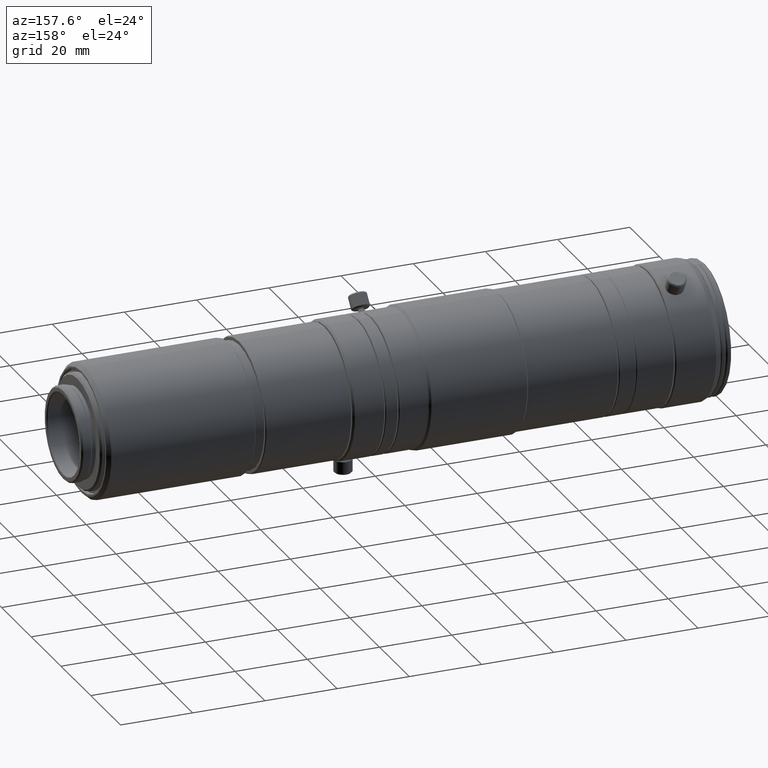
[diagram: clean part render]
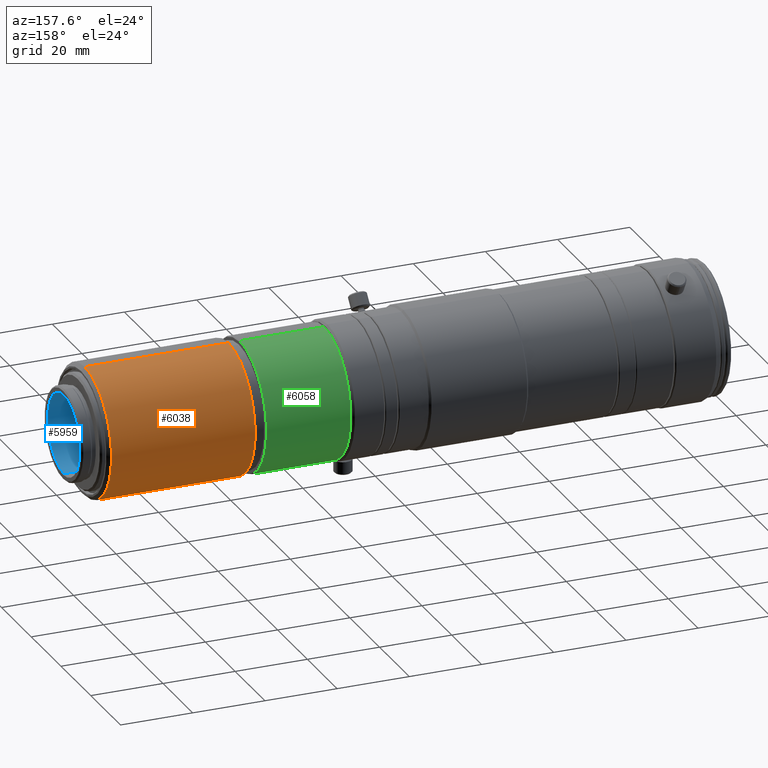
[diagram: same view with three faces highlighted in distinct colors, each labeled with its STEP entity id]
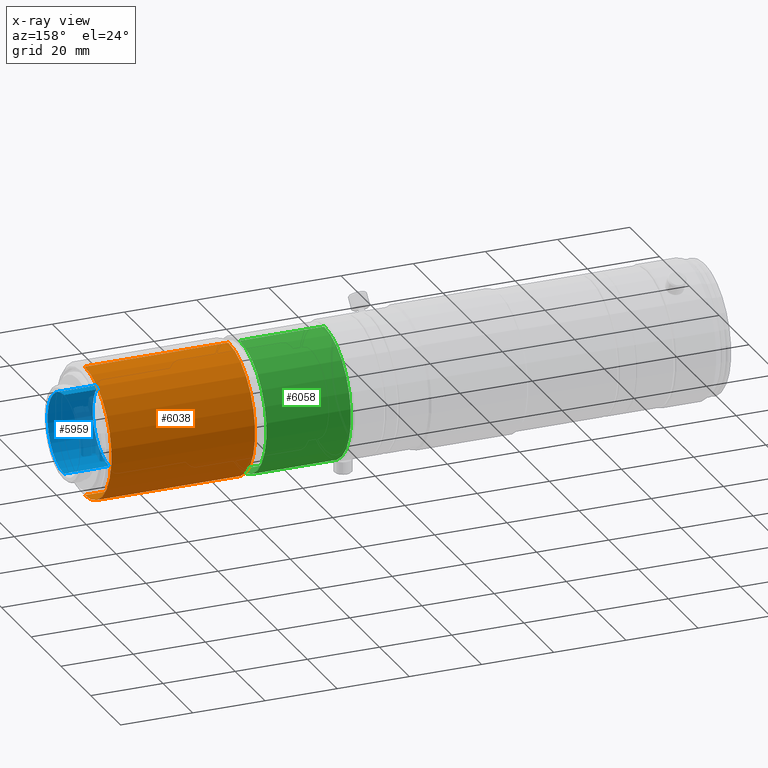
[diagram: x-ray of the same camera — body ghosted, the three highlighted faces saturated]
A machine part, auxiliary view with three faces highlighted in distinct colors.
The next image is the same camera in x-ray (body ghosted, the three faces saturated) — at least one of them is partly hidden behind the body in this view.
Their STEP definitions:

[orange] entity #6038 — the highlighted cylindrical surface (partial cylindrical patch) has radius 18 mm, axis along (1, -0, -0).
#478 = VERTEX_POINT ( 'NONE', #4625 ) ;
#479 = VERTEX_POINT ( 'NONE', #4667 ) ;
#483 = VERTEX_POINT ( 'NONE', #4878 ) ;
#484 = VERTEX_POINT ( 'NONE', #4660 ) ;
#1151 = LINE ( 'NONE', #1785, #1155 ) ;
#1154 = CIRCLE ( 'NONE', #4164, 18.00000000000007100 ) ;
#1155 = VECTOR ( 'NONE', #1790, 1000.000000000000000 ) ;
#1157 = LINE ( 'NONE', #1791, #1159 ) ;
#1158 = CIRCLE ( 'NONE', #4165, 18.00000000000007100 ) ;
#1159 = VECTOR ( 'NONE', #1792, 1000.000000000000000 ) ;
#1785 = CARTESIAN_POINT ( 'NONE',  ( 0.0000000000000000000, 0.0000000000000000000, -18.00000000000007100 ) ) ;
#1790 = DIRECTION ( 'NONE',  ( 1.000000000000000000, -0.0000000000000000000, -0.0000000000000000000 ) ) ;
#1791 = CARTESIAN_POINT ( 'NONE',  ( 0.0000000000000000000, 2.204364238465244500E-015, 18.00000000000007100 ) ) ;
#1792 = DIRECTION ( 'NONE',  ( 1.000000000000000000, -0.0000000000000000000, -0.0000000000000000000 ) ) ;
#1797 = CARTESIAN_POINT ( 'NONE',  ( -19.52600000000001000, 0.0000000000000000000, 0.0000000000000000000 ) ) ;
#1798 = DIRECTION ( 'NONE',  ( 1.000000000000000000, -0.0000000000000000000, -0.0000000000000000000 ) ) ;
#1799 = DIRECTION ( 'NONE',  ( 0.0000000000000000000, 0.0000000000000000000, -1.000000000000000000 ) ) ;
#1804 = CARTESIAN_POINT ( 'NONE',  ( -59.32600000000002200, 0.0000000000000000000, 0.0000000000000000000 ) ) ;
#1805 = DIRECTION ( 'NONE',  ( 1.000000000000000000, -0.0000000000000000000, -0.0000000000000000000 ) ) ;
#1806 = DIRECTION ( 'NONE',  ( 0.0000000000000000000, 0.0000000000000000000, -1.000000000000000000 ) ) ;
#2506 = FACE_OUTER_BOUND ( 'NONE', #5515, .T. ) ;
#2518 = CYLINDRICAL_SURFACE ( 'NONE', #3465, 18.00000000000007100 ) ;
#3214 = DIRECTION ( 'NONE',  ( 0.0000000000000000000, 0.0000000000000000000, -1.000000000000000000 ) ) ;
#3216 = DIRECTION ( 'NONE',  ( 1.000000000000000000, -0.0000000000000000000, -0.0000000000000000000 ) ) ;
#3218 = CARTESIAN_POINT ( 'NONE',  ( 0.0000000000000000000, 0.0000000000000000000, 0.0000000000000000000 ) ) ;
#3465 = AXIS2_PLACEMENT_3D ( 'NONE', #3218, #3216, #3214 ) ;
#4164 = AXIS2_PLACEMENT_3D ( 'NONE', #1797, #1798, #1799 ) ;
#4165 = AXIS2_PLACEMENT_3D ( 'NONE', #1804, #1805, #1806 ) ;
#4553 = ORIENTED_EDGE ( 'NONE', *, *, #5353, .T. ) ;
#4554 = ORIENTED_EDGE ( 'NONE', *, *, #5355, .T. ) ;
#4560 = ORIENTED_EDGE ( 'NONE', *, *, #5352, .F. ) ;
#4625 = CARTESIAN_POINT ( 'NONE',  ( -59.32600000000002200, 0.0000000000000000000, -18.00000000000007100 ) ) ;
#4660 = CARTESIAN_POINT ( 'NONE',  ( -19.52600000000001000, 0.0000000000000000000, 18.00000000000007100 ) ) ;
#4667 = CARTESIAN_POINT ( 'NONE',  ( -59.32600000000002200, 2.204364238465244500E-015, 18.00000000000007100 ) ) ;
#4878 = CARTESIAN_POINT ( 'NONE',  ( -19.52600000000001000, 2.204364238465244500E-015, -18.00000000000007100 ) ) ;
#5350 = EDGE_CURVE ( 'NONE', #478, #483, #1151, .T. ) ;
#5352 = EDGE_CURVE ( 'NONE', #483, #484, #1154, .T. ) ;
#5353 = EDGE_CURVE ( 'NONE', #479, #484, #1157, .T. ) ;
#5355 = EDGE_CURVE ( 'NONE', #478, #479, #1158, .T. ) ;
#5515 = EDGE_LOOP ( 'NONE', ( #4554, #4553, #4560, #5694 ) ) ;
#5694 = ORIENTED_EDGE ( 'NONE', *, *, #5350, .F. ) ;
#6038 = ADVANCED_FACE ( 'NONE', ( #2506 ), #2518, .T. ) ;

[blue] entity #5959 — the highlighted cylindrical surface (partial cylindrical patch) has radius 11 mm, axis along (1, -0, -0).
#491 = VERTEX_POINT ( 'NONE', #4641 ) ;
#497 = VERTEX_POINT ( 'NONE', #4634 ) ;
#507 = VERTEX_POINT ( 'NONE', #4608 ) ;
#544 = VERTEX_POINT ( 'NONE', #4866 ) ;
#663 = LINE ( 'NONE', #4413, #667 ) ;
#664 = LINE ( 'NONE', #4420, #669 ) ;
#666 = CIRCLE ( 'NONE', #5848, 11.00000000000007100 ) ;
#667 = VECTOR ( 'NONE', #4423, 1000.000000000000000 ) ;
#669 = VECTOR ( 'NONE', #4444, 1000.000000000000000 ) ;
#676 = CIRCLE ( 'NONE', #5850, 11.00000000000007100 ) ;
#2352 = FACE_OUTER_BOUND ( 'NONE', #3853, .T. ) ;
#2358 = CYLINDRICAL_SURFACE ( 'NONE', #4314, 11.00000000000007100 ) ;
#2964 = DIRECTION ( 'NONE',  ( 0.0000000000000000000, 0.0000000000000000000, -1.000000000000000000 ) ) ;
#2967 = DIRECTION ( 'NONE',  ( 1.000000000000000000, -0.0000000000000000000, -0.0000000000000000000 ) ) ;
#2968 = CARTESIAN_POINT ( 'NONE',  ( 0.0000000000000000000, 0.0000000000000000000, 0.0000000000000000000 ) ) ;
#3837 = ORIENTED_EDGE ( 'NONE', *, *, #3993, .F. ) ;
#3853 = EDGE_LOOP ( 'NONE', ( #3837, #3895, #3914, #5281 ) ) ;
#3895 = ORIENTED_EDGE ( 'NONE', *, *, #3992, .T. ) ;
#3914 = ORIENTED_EDGE ( 'NONE', *, *, #3998, .T. ) ;
#3991 = EDGE_CURVE ( 'NONE', #544, #497, #663, .T. ) ;
#3992 = EDGE_CURVE ( 'NONE', #491, #507, #664, .T. ) ;
#3993 = EDGE_CURVE ( 'NONE', #491, #544, #666, .T. ) ;
#3998 = EDGE_CURVE ( 'NONE', #507, #497, #676, .T. ) ;
#4314 = AXIS2_PLACEMENT_3D ( 'NONE', #2968, #2967, #2964 ) ;
#4413 = CARTESIAN_POINT ( 'NONE',  ( 0.0000000000000000000, 0.0000000000000000000, -11.00000000000007100 ) ) ;
#4420 = CARTESIAN_POINT ( 'NONE',  ( 0.0000000000000000000, 1.347111479062097100E-015, 11.00000000000007100 ) ) ;
#4423 = DIRECTION ( 'NONE',  ( 1.000000000000000000, -0.0000000000000000000, -0.0000000000000000000 ) ) ;
#4444 = DIRECTION ( 'NONE',  ( 1.000000000000000000, -0.0000000000000000000, -0.0000000000000000000 ) ) ;
#4461 = CARTESIAN_POINT ( 'NONE',  ( -13.77600000000001000, 0.0000000000000000000, 0.0000000000000000000 ) ) ;
#4468 = DIRECTION ( 'NONE',  ( 1.000000000000000000, -0.0000000000000000000, -0.0000000000000000000 ) ) ;
#4491 = DIRECTION ( 'NONE',  ( 0.0000000000000000000, 0.0000000000000000000, -1.000000000000000000 ) ) ;
#4506 = CARTESIAN_POINT ( 'NONE',  ( -26.27600000000001000, 0.0000000000000000000, 0.0000000000000000000 ) ) ;
#4511 = DIRECTION ( 'NONE',  ( 1.000000000000000000, -0.0000000000000000000, -0.0000000000000000000 ) ) ;
#4515 = DIRECTION ( 'NONE',  ( 0.0000000000000000000, 0.0000000000000000000, -1.000000000000000000 ) ) ;
#4608 = CARTESIAN_POINT ( 'NONE',  ( -13.77600000000001000, 1.347111479062097100E-015, 11.00000000000007100 ) ) ;
#4634 = CARTESIAN_POINT ( 'NONE',  ( -13.77600000000001000, 0.0000000000000000000, -11.00000000000007100 ) ) ;
#4641 = CARTESIAN_POINT ( 'NONE',  ( -26.27600000000001000, 0.0000000000000000000, 11.00000000000007100 ) ) ;
#4866 = CARTESIAN_POINT ( 'NONE',  ( -26.27600000000001000, 1.362419564051439000E-015, -11.00000000000007100 ) ) ;
#5281 = ORIENTED_EDGE ( 'NONE', *, *, #3991, .F. ) ;
#5848 = AXIS2_PLACEMENT_3D ( 'NONE', #4506, #4511, #4515 ) ;
#5850 = AXIS2_PLACEMENT_3D ( 'NONE', #4461, #4468, #4491 ) ;
#5959 = ADVANCED_FACE ( 'NONE', ( #2352 ), #2358, .F. ) ;

[green] entity #6058 — the highlighted cylindrical surface (partial cylindrical patch) has radius 18 mm, axis along (1, -0, -0).
#551 = VERTEX_POINT ( 'NONE', #4858 ) ;
#567 = VERTEX_POINT ( 'NONE', #4842 ) ;
#568 = VERTEX_POINT ( 'NONE', #4841 ) ;
#570 = VERTEX_POINT ( 'NONE', #4839 ) ;
#1830 = DIRECTION ( 'NONE',  ( 1.000000000000000000, -0.0000000000000000000, -0.0000000000000000000 ) ) ;
#1834 = CARTESIAN_POINT ( 'NONE',  ( 0.0000000000000000000, 0.0000000000000000000, -18.00000000000014200 ) ) ;
#1835 = CARTESIAN_POINT ( 'NONE',  ( -62.47219436237682500, 0.0000000000000000000, 0.0000000000000000000 ) ) ;
#1836 = DIRECTION ( 'NONE',  ( 1.000000000000000000, -0.0000000000000000000, -0.0000000000000000000 ) ) ;
#1837 = DIRECTION ( 'NONE',  ( 0.0000000000000000000, 0.0000000000000000000, -1.000000000000000000 ) ) ;
#1853 = CARTESIAN_POINT ( 'NONE',  ( -85.87219436237681700, 0.0000000000000000000, 0.0000000000000000000 ) ) ;
#1854 = DIRECTION ( 'NONE',  ( 1.000000000000000000, -0.0000000000000000000, -0.0000000000000000000 ) ) ;
#1855 = DIRECTION ( 'NONE',  ( 0.0000000000000000000, 0.0000000000000000000, -1.000000000000000000 ) ) ;
#1864 = CARTESIAN_POINT ( 'NONE',  ( 0.0000000000000000000, 2.204364238465252800E-015, 18.00000000000014200 ) ) ;
#1865 = DIRECTION ( 'NONE',  ( 1.000000000000000000, -0.0000000000000000000, -0.0000000000000000000 ) ) ;
#2088 = LINE ( 'NONE', #1834, #2093 ) ;
#2090 = CIRCLE ( 'NONE', #4171, 18.00000000000014200 ) ;
#2093 = VECTOR ( 'NONE', #1830, 1000.000000000000000 ) ;
#2099 = CIRCLE ( 'NONE', #4175, 18.00000000000014200 ) ;
#2106 = LINE ( 'NONE', #1864, #2109 ) ;
#2109 = VECTOR ( 'NONE', #1865, 1000.000000000000000 ) ;
#2553 = FACE_OUTER_BOUND ( 'NONE', #5548, .T. ) ;
#2558 = CYLINDRICAL_SURFACE ( 'NONE', #3484, 18.00000000000014200 ) ;
#3276 = DIRECTION ( 'NONE',  ( 0.0000000000000000000, 0.0000000000000000000, -1.000000000000000000 ) ) ;
#3278 = DIRECTION ( 'NONE',  ( 1.000000000000000000, -0.0000000000000000000, -0.0000000000000000000 ) ) ;
#3280 = CARTESIAN_POINT ( 'NONE',  ( 0.0000000000000000000, 0.0000000000000000000, 0.0000000000000000000 ) ) ;
#3484 = AXIS2_PLACEMENT_3D ( 'NONE', #3280, #3278, #3276 ) ;
#4171 = AXIS2_PLACEMENT_3D ( 'NONE', #1835, #1836, #1837 ) ;
#4175 = AXIS2_PLACEMENT_3D ( 'NONE', #1853, #1854, #1855 ) ;
#4541 = ORIENTED_EDGE ( 'NONE', *, *, #5369, .F. ) ;
#4564 = ORIENTED_EDGE ( 'NONE', *, *, #5375, .T. ) ;
#4568 = ORIENTED_EDGE ( 'NONE', *, *, #5368, .F. ) ;
#4570 = ORIENTED_EDGE ( 'NONE', *, *, #5380, .T. ) ;
#4839 = CARTESIAN_POINT ( 'NONE',  ( -85.87219436237681700, 2.204364238465252800E-015, 18.00000000000014200 ) ) ;
#4841 = CARTESIAN_POINT ( 'NONE',  ( -62.47219436237682500, 0.0000000000000000000, 18.00000000000014200 ) ) ;
#4842 = CARTESIAN_POINT ( 'NONE',  ( -85.87219436237681700, 0.0000000000000000000, -18.00000000000014200 ) ) ;
#4858 = CARTESIAN_POINT ( 'NONE',  ( -62.47219436237682500, 2.204364238465252800E-015, -18.00000000000014200 ) ) ;
#5368 = EDGE_CURVE ( 'NONE', #551, #568, #2090, .T. ) ;
#5369 = EDGE_CURVE ( 'NONE', #567, #551, #2088, .T. ) ;
#5375 = EDGE_CURVE ( 'NONE', #567, #570, #2099, .T. ) ;
#5380 = EDGE_CURVE ( 'NONE', #570, #568, #2106, .T. ) ;
#5548 = EDGE_LOOP ( 'NONE', ( #4564, #4570, #4568, #4541 ) ) ;
#6058 = ADVANCED_FACE ( 'NONE', ( #2553 ), #2558, .T. ) ;